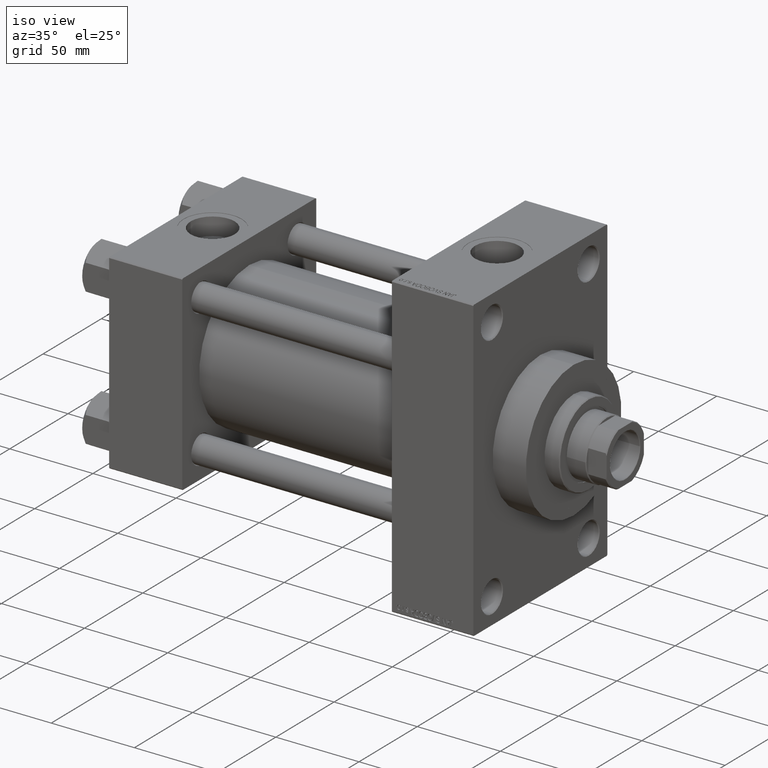
[diagram: clean part render]
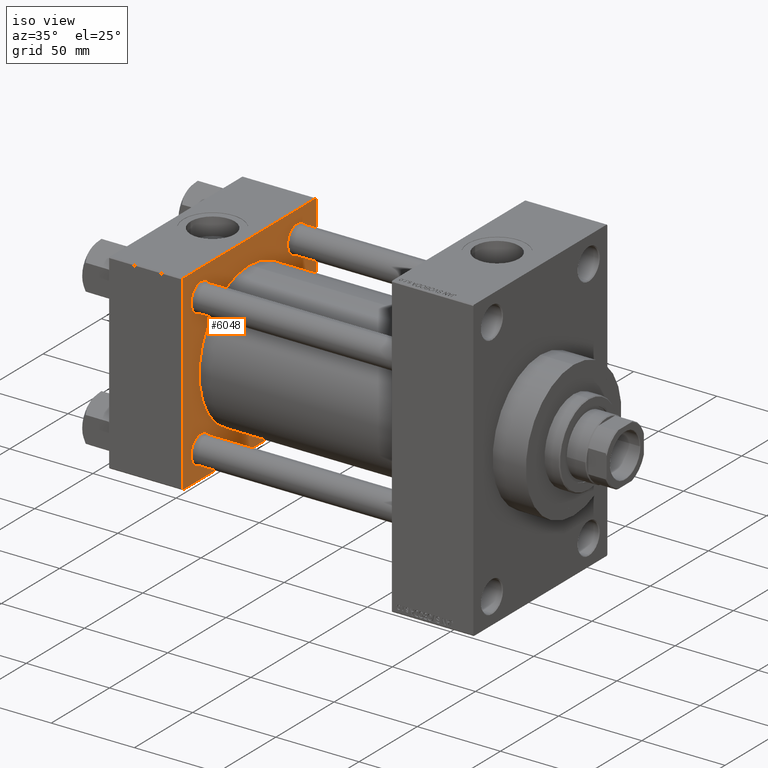
[diagram: same view with one face highlighted and labeled with its STEP entity id]
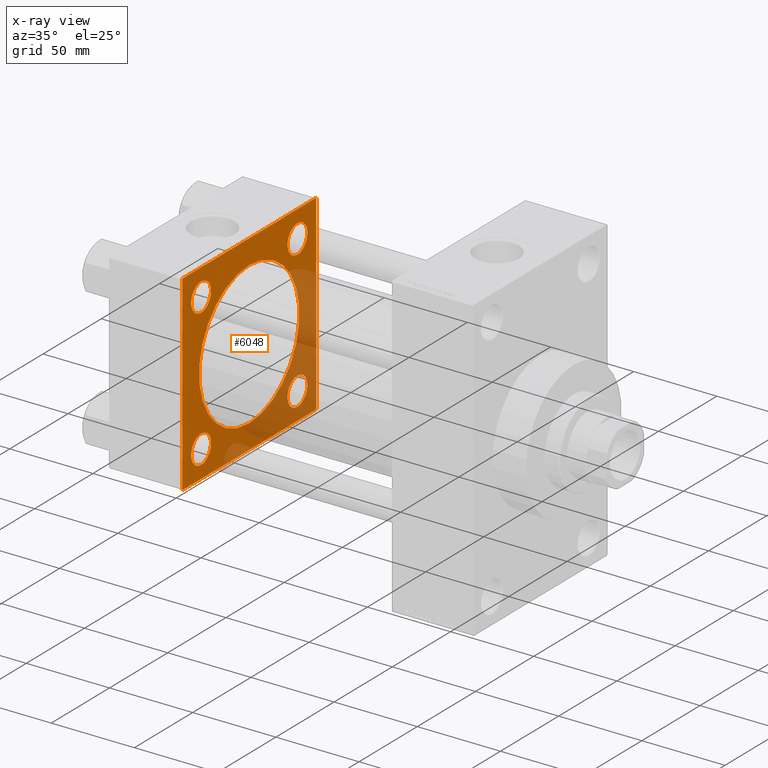
[diagram: x-ray of the same camera — body ghosted, the highlighted face saturated]
A machine part, iso view. The second image highlights one B-rep face of the part: STEP entity #6048.
The next image is the same camera in x-ray: the body ghosted, the highlighted face saturated — about 32% of this face is hidden behind the body in this view.
In plain terms, the highlighted planar face has unit normal (-1, 0, 0).
Its self-contained STEP definition (entity closure, byte-faithful):
#86 = CARTESIAN_POINT ( 'NONE',  ( 44.00000000000000000, 57.50000000000000000, -56.99999999999997158 ) ) ;
#237 = LINE ( 'NONE', #47251, #36691 ) ;
#472 = VERTEX_POINT ( 'NONE', #33757 ) ;
#1344 = DIRECTION ( 'NONE',  ( 0.000000000000000000, 0.000000000000000000, 1.000000000000000000 ) ) ;
#1494 = EDGE_CURVE ( 'NONE', #472, #39675, #36897, .T. ) ;
#1608 = CARTESIAN_POINT ( 'NONE',  ( 44.00000000000000000, -41.34999999999998721, -41.35000000000000142 ) ) ;
#1725 = ORIENTED_EDGE ( 'NONE', *, *, #9265, .T. ) ;
#2318 = DIRECTION ( 'NONE',  ( -1.000000000000000000, 0.000000000000000000, -0.000000000000000000 ) ) ;
#2616 = CIRCLE ( 'NONE', #31001, 8.500000000000007105 ) ;
#3373 = CARTESIAN_POINT ( 'NONE',  ( 44.00000000000000000, -41.34999999999998721, -41.35000000000000142 ) ) ;
#3467 = DIRECTION ( 'NONE',  ( -0.000000000000000000, 0.7071067811865328068, 0.7071067811865622277 ) ) ;
#3664 = CARTESIAN_POINT ( 'NONE',  ( 44.00000000000000000, -41.34999999999998721, -49.85000000000001563 ) ) ;
#4120 = CIRCLE ( 'NONE', #31056, 8.500000000000007105 ) ;
#4567 = EDGE_CURVE ( 'NONE', #26194, #12378, #43144, .T. ) ;
#4668 = VECTOR ( 'NONE', #9129, 1000.000000000000000 ) ;
#4676 = CARTESIAN_POINT ( 'NONE',  ( 44.00000000000000000, 41.34999999999999432, 41.34999999999999432 ) ) ;
#4909 = CARTESIAN_POINT ( 'NONE',  ( 44.00000000000000000, -41.34999999999998721, -32.84999999999999432 ) ) ;
#4932 = EDGE_CURVE ( 'NONE', #6998, #13130, #15358, .T. ) ;
#4979 = CARTESIAN_POINT ( 'NONE',  ( 44.00000000000000000, 57.00000000000001421, 57.50000000000001421 ) ) ;
#5393 = LINE ( 'NONE', #34809, #46373 ) ;
#5622 = CARTESIAN_POINT ( 'NONE',  ( 44.00000000000000000, 57.50000000000000000, -57.49999999999999289 ) ) ;
#5835 = EDGE_CURVE ( 'NONE', #6998, #37429, #26979, .T. ) ;
#6048 = ADVANCED_FACE ( 'NONE', ( #15132, #22612, #44302, #40220, #18050, #18288 ), #37327, .F. ) ;
#6998 = VERTEX_POINT ( 'NONE', #27662 ) ;
#7215 = DIRECTION ( 'NONE',  ( -1.000000000000000000, 0.000000000000000000, -0.000000000000000000 ) ) ;
#7230 = DIRECTION ( 'NONE',  ( 0.000000000000000000, 0.7071067811865524577, -0.7071067811865426878 ) ) ;
#8981 = VERTEX_POINT ( 'NONE', #34203 ) ;
#9121 = EDGE_LOOP ( 'NONE', ( #9416, #30236 ) ) ;
#9129 = DIRECTION ( 'NONE',  ( 0.000000000000000000, 0.000000000000000000, -1.000000000000000000 ) ) ;
#9265 = EDGE_CURVE ( 'NONE', #8981, #42785, #5393, .T. ) ;
#9416 = ORIENTED_EDGE ( 'NONE', *, *, #30375, .T. ) ;
#9476 = DIRECTION ( 'NONE',  ( 0.000000000000000000, -1.000000000000000000, -1.206764157201257291E-16 ) ) ;
#10358 = DIRECTION ( 'NONE',  ( 0.000000000000000000, 0.000000000000000000, 1.000000000000000000 ) ) ;
#10477 = ORIENTED_EDGE ( 'NONE', *, *, #15717, .T. ) ;
#10939 = ORIENTED_EDGE ( 'NONE', *, *, #34362, .T. ) ;
#11214 = AXIS2_PLACEMENT_3D ( 'NONE', #3373, #7215, #10358 ) ;
#12100 = VECTOR ( 'NONE', #40824, 1000.000000000000000 ) ;
#12378 = VERTEX_POINT ( 'NONE', #36562 ) ;
#12607 = ORIENTED_EDGE ( 'NONE', *, *, #4932, .T. ) ;
#12748 = CARTESIAN_POINT ( 'NONE',  ( 44.00000000000000000, 57.50000000000000000, 57.50000000000001421 ) ) ;
#12750 = DIRECTION ( 'NONE',  ( 0.000000000000000000, 6.033820786006285224E-17, -1.000000000000000000 ) ) ;
#13130 = VERTEX_POINT ( 'NONE', #38823 ) ;
#13211 = CARTESIAN_POINT ( 'NONE',  ( 44.00000000000000000, -41.34999999999998721, 41.35000000000000142 ) ) ;
#13316 = ORIENTED_EDGE ( 'NONE', *, *, #37461, .F. ) ;
#13562 = EDGE_LOOP ( 'NONE', ( #34533, #40383, #13598, #12607, #17110, #1725, #24379, #10939 ) ) ;
#13598 = ORIENTED_EDGE ( 'NONE', *, *, #5835, .F. ) ;
#14841 = EDGE_CURVE ( 'NONE', #26799, #30173, #15609, .T. ) ;
#14903 = VECTOR ( 'NONE', #9476, 1000.000000000000000 ) ;
#15132 = FACE_BOUND ( 'NONE', #32023, .T. ) ;
#15358 = LINE ( 'NONE', #4979, #30067 ) ;
#15609 = CIRCLE ( 'NONE', #42552, 8.500000000000007105 ) ;
#15717 = EDGE_CURVE ( 'NONE', #42689, #32896, #4120, .T. ) ;
#15756 = CIRCLE ( 'NONE', #43498, 8.500000000000007105 ) ;
#16452 = AXIS2_PLACEMENT_3D ( 'NONE', #4676, #33617, #26372 ) ;
#16646 = EDGE_CURVE ( 'NONE', #42785, #40078, #24557, .T. ) ;
#17110 = ORIENTED_EDGE ( 'NONE', *, *, #39673, .T. ) ;
#17189 = LINE ( 'NONE', #5622, #14903 ) ;
#17434 = CARTESIAN_POINT ( 'NONE',  ( 43.99999999999998579, 2.663896022368408223E-15, -43.00000000000000000 ) ) ;
#17588 = CARTESIAN_POINT ( 'NONE',  ( 44.00000000000000000, -57.49999999999999289, -57.00000000000003553 ) ) ;
#18050 = FACE_BOUND ( 'NONE', #35634, .T. ) ;
#18288 = FACE_OUTER_BOUND ( 'NONE', #13562, .T. ) ;
#18345 = CIRCLE ( 'NONE', #22196, 43.00000000000000000 ) ;
#19003 = DIRECTION ( 'NONE',  ( -1.000000000000000000, 0.000000000000000000, -0.000000000000000000 ) ) ;
#21050 = DIRECTION ( 'NONE',  ( 1.000000000000000000, -0.000000000000000000, 0.000000000000000000 ) ) ;
#21475 = AXIS2_PLACEMENT_3D ( 'NONE', #45732, #2318, #38027 ) ;
#22196 = AXIS2_PLACEMENT_3D ( 'NONE', #29500, #44193, #43722 ) ;
#22612 = FACE_BOUND ( 'NONE', #9121, .T. ) ;
#23162 = EDGE_CURVE ( 'NONE', #39675, #472, #36451, .T. ) ;
#23231 = EDGE_CURVE ( 'NONE', #34030, #43920, #17189, .T. ) ;
#23717 = DIRECTION ( 'NONE',  ( -0.000000000000000000, -0.7071067811865574537, -0.7071067811865376918 ) ) ;
#24045 = CARTESIAN_POINT ( 'NONE',  ( 44.00000000000000000, -41.34999999999998721, 32.84999999999999432 ) ) ;
#24379 = ORIENTED_EDGE ( 'NONE', *, *, #16646, .T. ) ;
#24557 = LINE ( 'NONE', #31553, #36503 ) ;
#24642 = EDGE_CURVE ( 'NONE', #32896, #42689, #2616, .T. ) ;
#24915 = LINE ( 'NONE', #44187, #37516 ) ;
#25373 = DIRECTION ( 'NONE',  ( 0.000000000000000000, 0.000000000000000000, 1.000000000000000000 ) ) ;
#25673 = VERTEX_POINT ( 'NONE', #4909 ) ;
#25714 = CARTESIAN_POINT ( 'NONE',  ( 44.00000000000000000, 41.34999999999999432, -41.34999999999999432 ) ) ;
#26184 = DIRECTION ( 'NONE',  ( 0.000000000000000000, 0.000000000000000000, 1.000000000000000000 ) ) ;
#26194 = VERTEX_POINT ( 'NONE', #17434 ) ;
#26372 = DIRECTION ( 'NONE',  ( 0.000000000000000000, 0.000000000000000000, 1.000000000000000000 ) ) ;
#26799 = VERTEX_POINT ( 'NONE', #38551 ) ;
#26979 = LINE ( 'NONE', #12748, #4668 ) ;
#27138 = DIRECTION ( 'NONE',  ( -1.000000000000000000, 0.000000000000000000, -0.000000000000000000 ) ) ;
#27662 = CARTESIAN_POINT ( 'NONE',  ( 44.00000000000000000, 57.50000000000000000, 57.00000000000004263 ) ) ;
#27698 = DIRECTION ( 'NONE',  ( -1.000000000000000000, 0.000000000000000000, -0.000000000000000000 ) ) ;
#28069 = CARTESIAN_POINT ( 'NONE',  ( 44.00000000000000000, 57.00000000000002842, -57.49999999999999289 ) ) ;
#28288 = CARTESIAN_POINT ( 'NONE',  ( 43.99999999999998579, -2.602085213965210642E-15, 0.000000000000000000 ) ) ;
#29500 = CARTESIAN_POINT ( 'NONE',  ( 43.99999999999998579, -2.602085213965210642E-15, 0.000000000000000000 ) ) ;
#30067 = VECTOR ( 'NONE', #44763, 1000.000000000000114 ) ;
#30173 = VERTEX_POINT ( 'NONE', #41424 ) ;
#30236 = ORIENTED_EDGE ( 'NONE', *, *, #14841, .T. ) ;
#30375 = EDGE_CURVE ( 'NONE', #30173, #26799, #15756, .T. ) ;
#30686 = CARTESIAN_POINT ( 'NONE',  ( 44.00000000000000000, 41.34999999999999432, 49.85000000000000853 ) ) ;
#30708 = ORIENTED_EDGE ( 'NONE', *, *, #4567, .F. ) ;
#31001 = AXIS2_PLACEMENT_3D ( 'NONE', #44741, #44507, #26184 ) ;
#31026 = DIRECTION ( 'NONE',  ( -1.000000000000000000, 0.000000000000000000, -0.000000000000000000 ) ) ;
#31056 = AXIS2_PLACEMENT_3D ( 'NONE', #13211, #27698, #46021 ) ;
#31553 = CARTESIAN_POINT ( 'NONE',  ( 44.00000000000000000, -57.50000000000000000, 57.49999999999999289 ) ) ;
#31711 = ORIENTED_EDGE ( 'NONE', *, *, #23162, .T. ) ;
#32009 = CIRCLE ( 'NONE', #11214, 8.500000000000007105 ) ;
#32023 = EDGE_LOOP ( 'NONE', ( #45110, #33199 ) ) ;
#32714 = DIRECTION ( 'NONE',  ( -1.000000000000000000, 0.000000000000000000, -0.000000000000000000 ) ) ;
#32896 = VERTEX_POINT ( 'NONE', #33157 ) ;
#33030 = CIRCLE ( 'NONE', #33786, 8.500000000000007105 ) ;
#33157 = CARTESIAN_POINT ( 'NONE',  ( 44.00000000000000000, -41.34999999999998721, 49.85000000000001563 ) ) ;
#33199 = ORIENTED_EDGE ( 'NONE', *, *, #47331, .T. ) ;
#33221 = DIRECTION ( 'NONE',  ( -0.000000000000000000, 0.000000000000000000, 1.000000000000000000 ) ) ;
#33592 = CARTESIAN_POINT ( 'NONE',  ( 44.00000000000000000, 57.50000000000000000, 57.50000000000001421 ) ) ;
#33617 = DIRECTION ( 'NONE',  ( -1.000000000000000000, 0.000000000000000000, -0.000000000000000000 ) ) ;
#33757 = CARTESIAN_POINT ( 'NONE',  ( 44.00000000000000000, 41.34999999999999432, 32.84999999999998721 ) ) ;
#33786 = AXIS2_PLACEMENT_3D ( 'NONE', #1608, #31026, #34649 ) ;
#34030 = VERTEX_POINT ( 'NONE', #28069 ) ;
#34203 = CARTESIAN_POINT ( 'NONE',  ( 44.00000000000000000, -56.99999999999997158, 57.49999999999999289 ) ) ;
#34362 = EDGE_CURVE ( 'NONE', #40078, #43920, #237, .T. ) ;
#34446 = EDGE_LOOP ( 'NONE', ( #10477, #34737 ) ) ;
#34533 = ORIENTED_EDGE ( 'NONE', *, *, #23231, .F. ) ;
#34541 = LINE ( 'NONE', #33592, #12100 ) ;
#34649 = DIRECTION ( 'NONE',  ( 0.000000000000000000, 0.000000000000000000, 1.000000000000000000 ) ) ;
#34737 = ORIENTED_EDGE ( 'NONE', *, *, #24642, .T. ) ;
#34809 = CARTESIAN_POINT ( 'NONE',  ( 44.00000000000000000, -57.50000000000000000, 56.99999999999997868 ) ) ;
#35090 = CARTESIAN_POINT ( 'NONE',  ( 44.00000000000000000, 41.34999999999999432, -41.34999999999999432 ) ) ;
#35634 = EDGE_LOOP ( 'NONE', ( #13316, #30708 ) ) ;
#36451 = CIRCLE ( 'NONE', #16452, 8.500000000000007105 ) ;
#36503 = VECTOR ( 'NONE', #12750, 1000.000000000000000 ) ;
#36562 = CARTESIAN_POINT ( 'NONE',  ( 43.99999999999998579, -2.602085213965210642E-15, 43.00000000000000000 ) ) ;
#36691 = VECTOR ( 'NONE', #7230, 1000.000000000000000 ) ;
#36847 = CARTESIAN_POINT ( 'NONE',  ( 44.00000000000000000, 0.000000000000000000, 0.000000000000000000 ) ) ;
#36897 = CIRCLE ( 'NONE', #21475, 8.500000000000007105 ) ;
#37026 = AXIS2_PLACEMENT_3D ( 'NONE', #36847, #19003, #33221 ) ;
#37327 = PLANE ( 'NONE',  #37026 ) ;
#37429 = VERTEX_POINT ( 'NONE', #86 ) ;
#37461 = EDGE_CURVE ( 'NONE', #12378, #26194, #18345, .T. ) ;
#37516 = VECTOR ( 'NONE', #3467, 1000.000000000000000 ) ;
#38027 = DIRECTION ( 'NONE',  ( 0.000000000000000000, 0.000000000000000000, 1.000000000000000000 ) ) ;
#38551 = CARTESIAN_POINT ( 'NONE',  ( 44.00000000000000000, 41.34999999999999432, -32.84999999999998721 ) ) ;
#38737 = EDGE_CURVE ( 'NONE', #34030, #37429, #24915, .T. ) ;
#38823 = CARTESIAN_POINT ( 'NONE',  ( 44.00000000000000000, 57.00000000000001421, 57.50000000000001421 ) ) ;
#39673 = EDGE_CURVE ( 'NONE', #13130, #8981, #34541, .T. ) ;
#39675 = VERTEX_POINT ( 'NONE', #30686 ) ;
#39801 = EDGE_LOOP ( 'NONE', ( #41545, #31711 ) ) ;
#40078 = VERTEX_POINT ( 'NONE', #17588 ) ;
#40220 = FACE_BOUND ( 'NONE', #39801, .T. ) ;
#40383 = ORIENTED_EDGE ( 'NONE', *, *, #38737, .T. ) ;
#40824 = DIRECTION ( 'NONE',  ( 0.000000000000000000, -1.000000000000000000, -1.810146235801885567E-16 ) ) ;
#41424 = CARTESIAN_POINT ( 'NONE',  ( 44.00000000000000000, 41.34999999999999432, -49.85000000000000853 ) ) ;
#41545 = ORIENTED_EDGE ( 'NONE', *, *, #1494, .T. ) ;
#42389 = AXIS2_PLACEMENT_3D ( 'NONE', #28288, #21050, #25373 ) ;
#42552 = AXIS2_PLACEMENT_3D ( 'NONE', #35090, #27138, #1344 ) ;
#42689 = VERTEX_POINT ( 'NONE', #24045 ) ;
#42785 = VERTEX_POINT ( 'NONE', #43083 ) ;
#42832 = CARTESIAN_POINT ( 'NONE',  ( 44.00000000000000000, -57.00000000000001421, -57.50000000000000711 ) ) ;
#42998 = EDGE_CURVE ( 'NONE', #45471, #25673, #33030, .T. ) ;
#43083 = CARTESIAN_POINT ( 'NONE',  ( 44.00000000000000000, -57.50000000000000000, 56.99999999999997868 ) ) ;
#43144 = CIRCLE ( 'NONE', #42389, 43.00000000000000000 ) ;
#43498 = AXIS2_PLACEMENT_3D ( 'NONE', #25714, #32714, #47413 ) ;
#43722 = DIRECTION ( 'NONE',  ( 0.000000000000000000, 0.000000000000000000, 1.000000000000000000 ) ) ;
#43920 = VERTEX_POINT ( 'NONE', #42832 ) ;
#44187 = CARTESIAN_POINT ( 'NONE',  ( 44.00000000000000000, 57.50000000000000000, -57.00000000000000000 ) ) ;
#44193 = DIRECTION ( 'NONE',  ( 1.000000000000000000, -0.000000000000000000, 0.000000000000000000 ) ) ;
#44302 = FACE_BOUND ( 'NONE', #34446, .T. ) ;
#44507 = DIRECTION ( 'NONE',  ( -1.000000000000000000, 0.000000000000000000, -0.000000000000000000 ) ) ;
#44741 = CARTESIAN_POINT ( 'NONE',  ( 44.00000000000000000, -41.34999999999998721, 41.35000000000000142 ) ) ;
#44763 = DIRECTION ( 'NONE',  ( 0.000000000000000000, -0.7071067811865573427, 0.7071067811865376918 ) ) ;
#45110 = ORIENTED_EDGE ( 'NONE', *, *, #42998, .T. ) ;
#45471 = VERTEX_POINT ( 'NONE', #3664 ) ;
#45732 = CARTESIAN_POINT ( 'NONE',  ( 44.00000000000000000, 41.34999999999999432, 41.34999999999999432 ) ) ;
#46021 = DIRECTION ( 'NONE',  ( 0.000000000000000000, 0.000000000000000000, 1.000000000000000000 ) ) ;
#46373 = VECTOR ( 'NONE', #23717, 999.9999999999998863 ) ;
#47251 = CARTESIAN_POINT ( 'NONE',  ( 44.00000000000000000, -57.00000000000001421, -57.50000000000000711 ) ) ;
#47331 = EDGE_CURVE ( 'NONE', #25673, #45471, #32009, .T. ) ;
#47413 = DIRECTION ( 'NONE',  ( 0.000000000000000000, 0.000000000000000000, 1.000000000000000000 ) ) ;